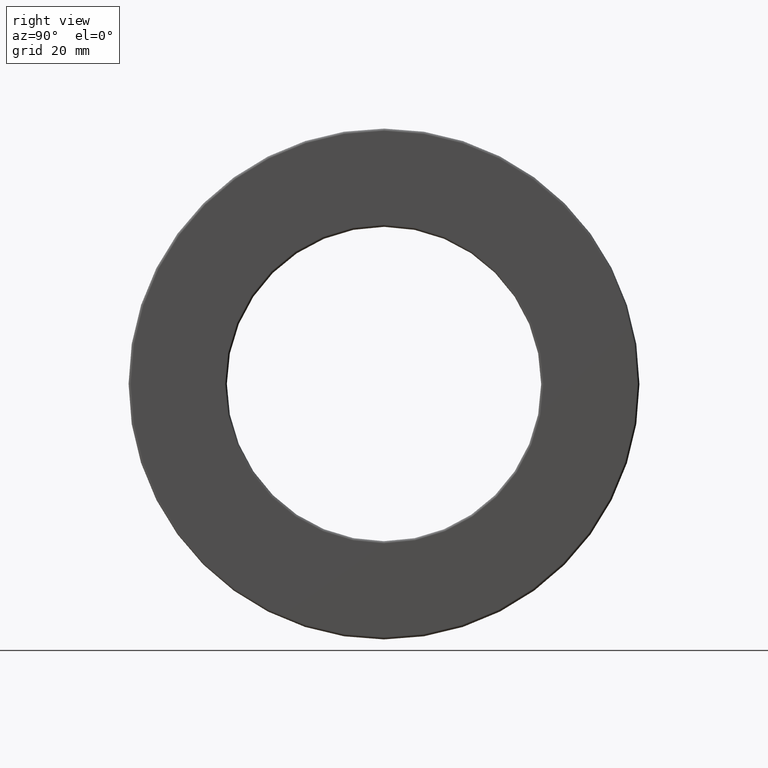
[diagram: clean part render]
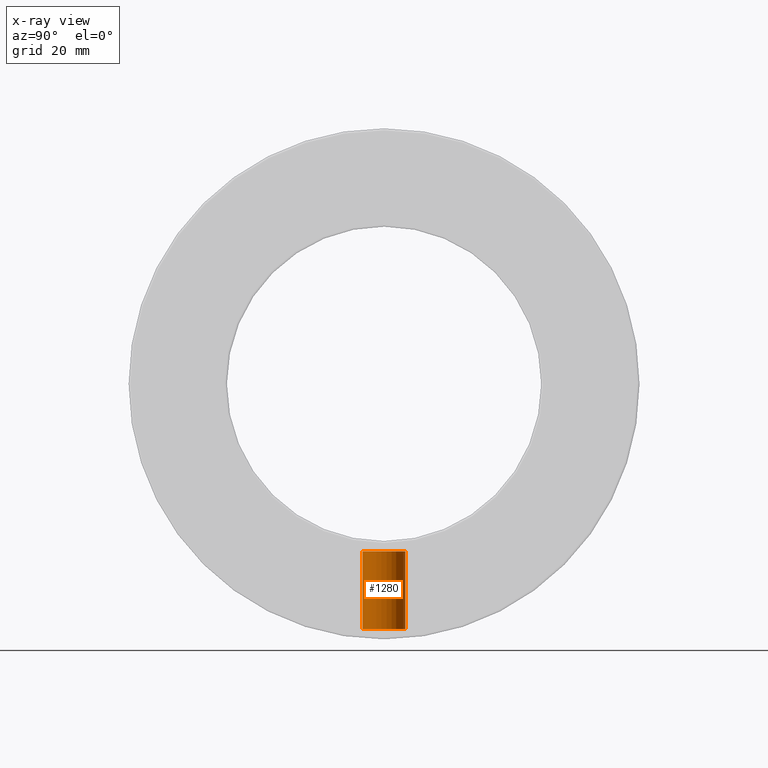
[diagram: x-ray — body ghosted, one internal face saturated and labeled with its STEP entity id]
A machine part, right view, then the same camera in x-ray: the body is ghosted and one INTERNAL B-rep face — a face not visible from any outside direction — is saturated and labeled: STEP entity #1280.
In plain terms, the highlighted cylindrical surface (bore or boss wall) has radius 4.7625 mm, axis along (0, -0, -1).
Its self-contained STEP definition (entity closure, byte-faithful):
#5 = DIRECTION ( 'NONE',  ( 0.0000000000000000000, -3.491481338843133400E-015, -1.000000000000000000 ) ) ;
#66 = DIRECTION ( 'NONE',  ( 0.0000000000000000000, -3.491481338843133400E-015, -1.000000000000000000 ) ) ;
#96 = ORIENTED_EDGE ( 'NONE', *, *, #290, .T. ) ;
#192 = CARTESIAN_POINT ( 'NONE',  ( 0.0000000000000000000, 0.0000000000000000000, 0.0000000000000000000 ) ) ;
#245 = CARTESIAN_POINT ( 'NONE',  ( 0.0000000000000000000, 0.1874999999999923700, -2.144375000000000600 ) ) ;
#290 = EDGE_CURVE ( 'NONE', #926, #926, #575, .T. ) ;
#301 = FACE_OUTER_BOUND ( 'NONE', #1071, .T. ) ;
#484 = VERTEX_POINT ( 'NONE', #245 ) ;
#575 = CIRCLE ( 'NONE', #744, 0.1875000000000000600 ) ;
#634 = ORIENTED_EDGE ( 'NONE', *, *, #874, .F. ) ;
#710 = FACE_OUTER_BOUND ( 'NONE', #1194, .T. ) ;
#744 = AXIS2_PLACEMENT_3D ( 'NONE', #850, #750, #1428 ) ;
#750 = DIRECTION ( 'NONE',  ( 0.0000000000000000000, -3.491481338843133400E-015, -1.000000000000000000 ) ) ;
#840 = AXIS2_PLACEMENT_3D ( 'NONE', #1455, #5, #1340 ) ;
#850 = CARTESIAN_POINT ( 'NONE',  ( 0.0000000000000000000, -5.115020161405190800E-015, -1.465000000000000100 ) ) ;
#874 = EDGE_CURVE ( 'NONE', #484, #484, #892, .T. ) ;
#892 = CIRCLE ( 'NONE', #840, 0.1874999999999998300 ) ;
#919 = CARTESIAN_POINT ( 'NONE',  ( 0.0000000000000000000, 0.1874999999999949200, -1.465000000000000500 ) ) ;
#926 = VERTEX_POINT ( 'NONE', #919 ) ;
#967 = CYLINDRICAL_SURFACE ( 'NONE', #1029, 0.1874999999999999400 ) ;
#1029 = AXIS2_PLACEMENT_3D ( 'NONE', #192, #66, #1189 ) ;
#1071 = EDGE_LOOP ( 'NONE', ( #96 ) ) ;
#1189 = DIRECTION ( 'NONE',  ( 0.0000000000000000000, 1.000000000000000000, -3.491481338843133400E-015 ) ) ;
#1194 = EDGE_LOOP ( 'NONE', ( #634 ) ) ;
#1280 = ADVANCED_FACE ( 'NONE', ( #301, #710 ), #967, .T. ) ;
#1340 = DIRECTION ( 'NONE',  ( 0.0000000000000000000, 1.000000000000000000, -2.913971193241883500E-015 ) ) ;
#1428 = DIRECTION ( 'NONE',  ( 0.0000000000000000000, 1.000000000000000000, -2.913971193241880000E-015 ) ) ;
#1455 = CARTESIAN_POINT ( 'NONE',  ( 0.0000000000000000000, -7.487045295981743000E-015, -2.144375000000000100 ) ) ;